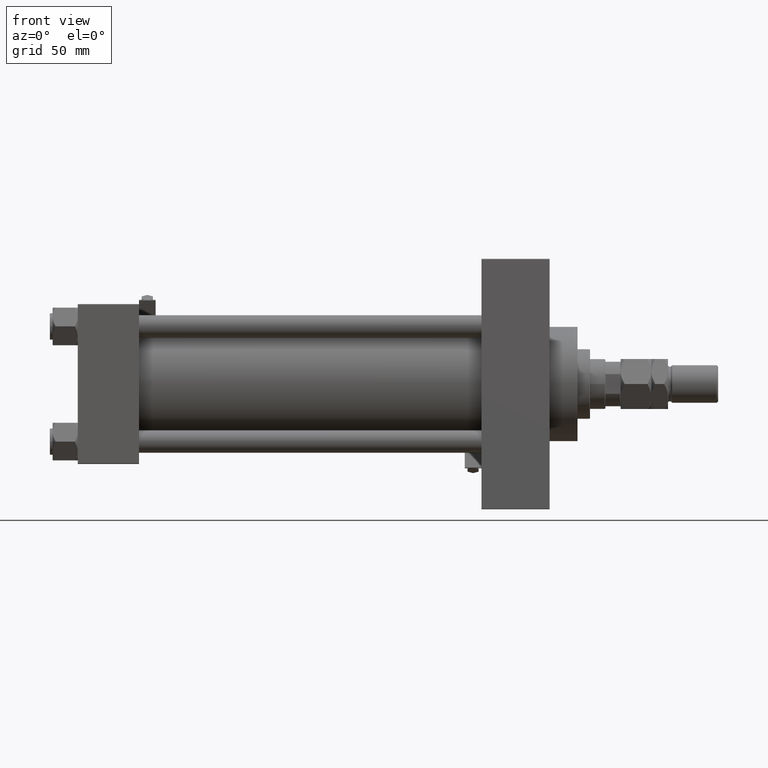
[diagram: clean part render]
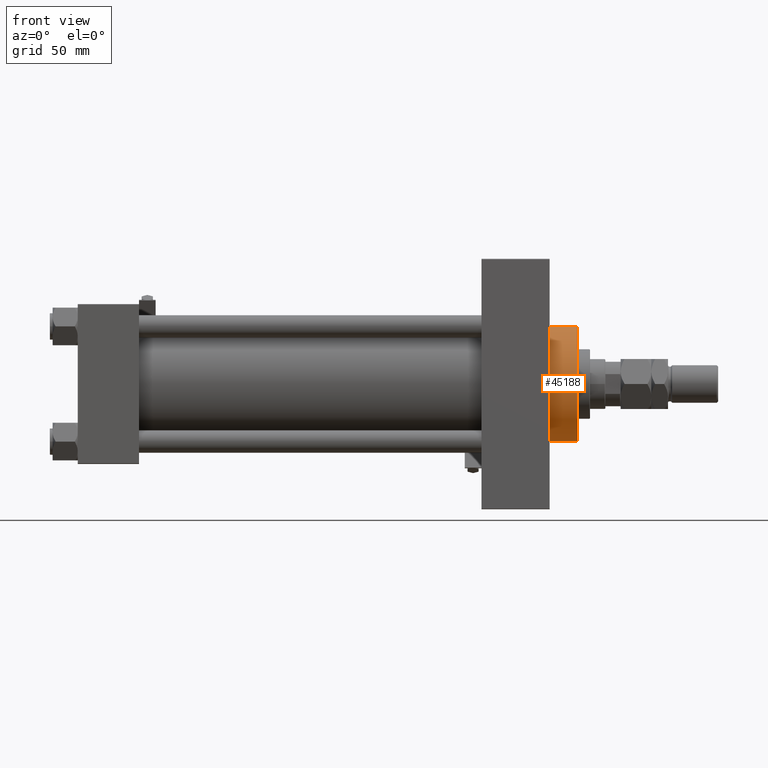
[diagram: same view with one face highlighted and labeled with its STEP entity id]
A machine part, front view. The second image highlights one B-rep face of the part: STEP entity #45188.
In plain terms, the highlighted cylindrical surface (partial cylindrical patch) has radius 41 mm, axis along (-1, -0, -0).
Its self-contained STEP definition (entity closure, byte-faithful):
#58 = DIRECTION ( 'NONE',  ( -1.000000000000000000, -0.000000000000000000, -0.000000000000000000 ) ) ;
#164 = ORIENTED_EDGE ( 'NONE', *, *, #7966, .T. ) ;
#2436 = EDGE_LOOP ( 'NONE', ( #36769, #45949, #164, #5371 ) ) ;
#2843 = LINE ( 'NONE', #42317, #29338 ) ;
#4838 = DIRECTION ( 'NONE',  ( 0.000000000000000000, 0.000000000000000000, -1.000000000000000000 ) ) ;
#5191 = DIRECTION ( 'NONE',  ( 0.000000000000000000, 0.000000000000000000, 1.000000000000000000 ) ) ;
#5371 = ORIENTED_EDGE ( 'NONE', *, *, #20217, .T. ) ;
#7579 = VERTEX_POINT ( 'NONE', #12627 ) ;
#7650 = DIRECTION ( 'NONE',  ( -1.000000000000000000, -0.000000000000000000, -0.000000000000000000 ) ) ;
#7966 = EDGE_CURVE ( 'NONE', #40279, #32684, #45912, .T. ) ;
#10559 = AXIS2_PLACEMENT_3D ( 'NONE', #43663, #46979, #5191 ) ;
#12627 = CARTESIAN_POINT ( 'NONE',  ( 338.9999999999999432, 5.021051876504148963E-15, -41.00000000000000000 ) ) ;
#16413 = FACE_OUTER_BOUND ( 'NONE', #2436, .T. ) ;
#17800 = EDGE_CURVE ( 'NONE', #40279, #37896, #19253, .T. ) ;
#19253 = CIRCLE ( 'NONE', #39587, 41.00000000000000000 ) ;
#20217 = EDGE_CURVE ( 'NONE', #32684, #7579, #48642, .T. ) ;
#24452 = CARTESIAN_POINT ( 'NONE',  ( 338.9999999999999432, 0.000000000000000000, 0.000000000000000000 ) ) ;
#25127 = CARTESIAN_POINT ( 'NONE',  ( 359.0000000000000000, 0.000000000000000000, 0.000000000000000000 ) ) ;
#26334 = CARTESIAN_POINT ( 'NONE',  ( 338.9999999999999432, 0.000000000000000000, 41.00000000000000000 ) ) ;
#26661 = AXIS2_PLACEMENT_3D ( 'NONE', #24452, #35675, #4838 ) ;
#29338 = VECTOR ( 'NONE', #7650, 1000.000000000000000 ) ;
#30432 = VECTOR ( 'NONE', #58, 1000.000000000000000 ) ;
#32019 = DIRECTION ( 'NONE',  ( 0.000000000000000000, 0.000000000000000000, -1.000000000000000000 ) ) ;
#32197 = CYLINDRICAL_SURFACE ( 'NONE', #10559, 41.00000000000000000 ) ;
#32684 = VERTEX_POINT ( 'NONE', #26334 ) ;
#35007 = CARTESIAN_POINT ( 'NONE',  ( 359.0000000000000000, 5.021051876504148963E-15, -41.00000000000000000 ) ) ;
#35675 = DIRECTION ( 'NONE',  ( 1.000000000000000000, 0.000000000000000000, 0.000000000000000000 ) ) ;
#36089 = DIRECTION ( 'NONE',  ( 1.000000000000000000, 0.000000000000000000, 0.000000000000000000 ) ) ;
#36769 = ORIENTED_EDGE ( 'NONE', *, *, #47362, .F. ) ;
#37896 = VERTEX_POINT ( 'NONE', #35007 ) ;
#39587 = AXIS2_PLACEMENT_3D ( 'NONE', #25127, #36089, #32019 ) ;
#40279 = VERTEX_POINT ( 'NONE', #43842 ) ;
#42317 = CARTESIAN_POINT ( 'NONE',  ( 359.0000000000000000, 5.021051876504148963E-15, -41.00000000000000000 ) ) ;
#43663 = CARTESIAN_POINT ( 'NONE',  ( 359.0000000000000000, 0.000000000000000000, 0.000000000000000000 ) ) ;
#43842 = CARTESIAN_POINT ( 'NONE',  ( 359.0000000000000000, 0.000000000000000000, 41.00000000000000000 ) ) ;
#45188 = ADVANCED_FACE ( 'NONE', ( #16413 ), #32197, .T. ) ;
#45912 = LINE ( 'NONE', #50238, #30432 ) ;
#45949 = ORIENTED_EDGE ( 'NONE', *, *, #17800, .F. ) ;
#46979 = DIRECTION ( 'NONE',  ( -1.000000000000000000, -0.000000000000000000, -0.000000000000000000 ) ) ;
#47362 = EDGE_CURVE ( 'NONE', #37896, #7579, #2843, .T. ) ;
#48642 = CIRCLE ( 'NONE', #26661, 41.00000000000000000 ) ;
#50238 = CARTESIAN_POINT ( 'NONE',  ( 359.0000000000000000, 0.000000000000000000, 41.00000000000000000 ) ) ;